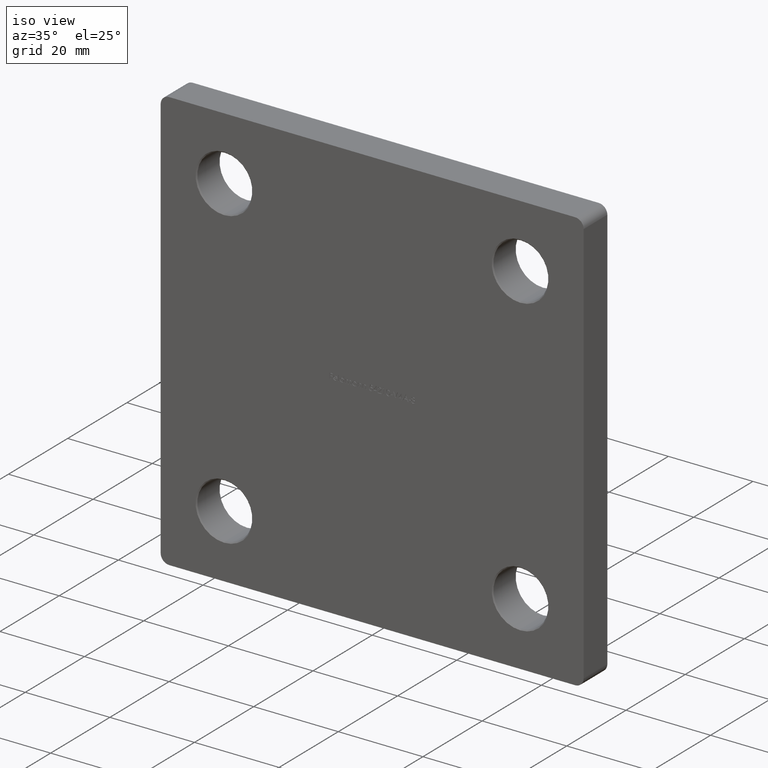
[diagram: clean part render]
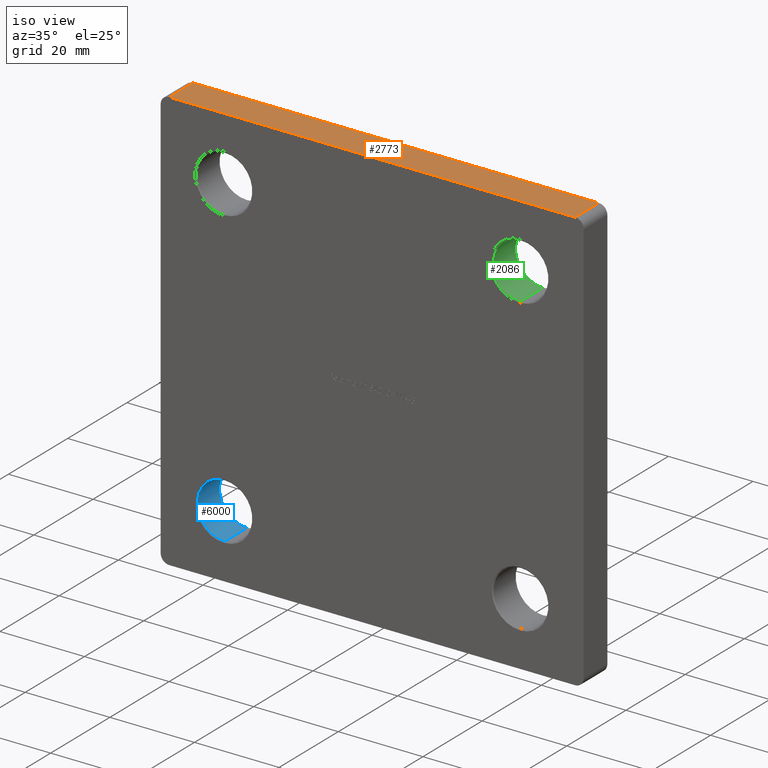
[diagram: same view with three faces highlighted in distinct colors, each labeled with its STEP entity id]
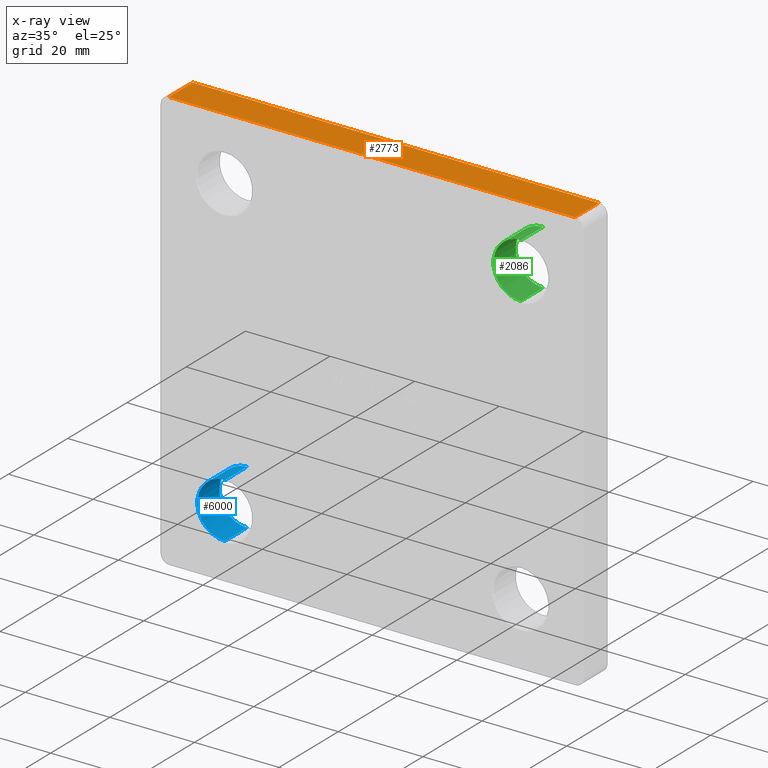
[diagram: x-ray of the same camera — body ghosted, the three highlighted faces saturated]
A machine part, iso view with three faces highlighted in distinct colors.
The next image is the same camera in x-ray (body ghosted, the three faces saturated) — at least one of them is partly hidden behind the body in this view.
Their STEP definitions:

[orange] entity #2773 — the highlighted planar face has unit normal (0, 0, -1).
#790 = LINE ( 'NONE', #3370, #3651 ) ;
#844 = CARTESIAN_POINT ( 'NONE',  ( -49.99999999999998579, 8.000000000000000000, 50.00000000000000711 ) ) ;
#850 = ORIENTED_EDGE ( 'NONE', *, *, #7209, .T. ) ;
#1106 = LINE ( 'NONE', #3955, #8121 ) ;
#1478 = VERTEX_POINT ( 'NONE', #7026 ) ;
#1943 = VERTEX_POINT ( 'NONE', #8567 ) ;
#2391 = DIRECTION ( 'NONE',  ( -0.000000000000000000, 1.000000000000000000, -0.000000000000000000 ) ) ;
#2415 = CARTESIAN_POINT ( 'NONE',  ( -49.99999999999998579, 0.000000000000000000, 50.00000000000000711 ) ) ;
#2437 = CARTESIAN_POINT ( 'NONE',  ( -47.99999999999998579, 0.000000000000000000, 50.00000000000000711 ) ) ;
#2773 = ADVANCED_FACE ( 'NONE', ( #10277 ), #12014, .F. ) ;
#3370 = CARTESIAN_POINT ( 'NONE',  ( -47.99999999999998579, 8.000000000000000000, 50.00000000000000711 ) ) ;
#3457 = CARTESIAN_POINT ( 'NONE',  ( 48.00000000000001421, 8.000000000000000000, 50.00000000000000711 ) ) ;
#3651 = VECTOR ( 'NONE', #6688, 1000.000000000000000 ) ;
#3955 = CARTESIAN_POINT ( 'NONE',  ( -49.99999999999998579, 8.000000000000000000, 50.00000000000000711 ) ) ;
#4327 = LINE ( 'NONE', #2415, #12168 ) ;
#4654 = EDGE_CURVE ( 'NONE', #7170, #7237, #4327, .T. ) ;
#6688 = DIRECTION ( 'NONE',  ( 0.000000000000000000, -1.000000000000000000, 0.000000000000000000 ) ) ;
#7026 = CARTESIAN_POINT ( 'NONE',  ( -47.99999999999998579, 8.000000000000000000, 50.00000000000000711 ) ) ;
#7170 = VERTEX_POINT ( 'NONE', #2437 ) ;
#7209 = EDGE_CURVE ( 'NONE', #7237, #1943, #9402, .T. ) ;
#7237 = VERTEX_POINT ( 'NONE', #10756 ) ;
#7265 = EDGE_CURVE ( 'NONE', #1478, #7170, #790, .T. ) ;
#8121 = VECTOR ( 'NONE', #11223, 1000.000000000000000 ) ;
#8567 = CARTESIAN_POINT ( 'NONE',  ( 48.00000000000001421, 8.000000000000000000, 50.00000000000000711 ) ) ;
#8892 = EDGE_CURVE ( 'NONE', #1478, #1943, #1106, .T. ) ;
#9255 = AXIS2_PLACEMENT_3D ( 'NONE', #844, #12928, #13018 ) ;
#9402 = LINE ( 'NONE', #3457, #13069 ) ;
#9414 = ORIENTED_EDGE ( 'NONE', *, *, #4654, .T. ) ;
#10277 = FACE_OUTER_BOUND ( 'NONE', #10872, .T. ) ;
#10756 = CARTESIAN_POINT ( 'NONE',  ( 48.00000000000001421, 0.000000000000000000, 50.00000000000000711 ) ) ;
#10872 = EDGE_LOOP ( 'NONE', ( #12317, #12805, #9414, #850 ) ) ;
#11223 = DIRECTION ( 'NONE',  ( 1.000000000000000000, 0.000000000000000000, 0.000000000000000000 ) ) ;
#11693 = DIRECTION ( 'NONE',  ( 1.000000000000000000, 0.000000000000000000, 0.000000000000000000 ) ) ;
#12014 = PLANE ( 'NONE',  #9255 ) ;
#12168 = VECTOR ( 'NONE', #11693, 1000.000000000000000 ) ;
#12317 = ORIENTED_EDGE ( 'NONE', *, *, #8892, .F. ) ;
#12805 = ORIENTED_EDGE ( 'NONE', *, *, #7265, .T. ) ;
#12928 = DIRECTION ( 'NONE',  ( 0.000000000000000000, 0.000000000000000000, -1.000000000000000000 ) ) ;
#13018 = DIRECTION ( 'NONE',  ( -1.000000000000000000, 0.000000000000000000, -0.000000000000000000 ) ) ;
#13069 = VECTOR ( 'NONE', #2391, 1000.000000000000000 ) ;

[blue] entity #6000 — the highlighted cylindrical surface (edge-blend (fillet) strip) has radius 6.5 mm, axis along (-0, 1, -0).
#110 = DIRECTION ( 'NONE',  ( 0.000000000000000000, 0.000000000000000000, 1.000000000000000000 ) ) ;
#254 = DIRECTION ( 'NONE',  ( -0.000000000000000000, 1.000000000000000000, -0.000000000000000000 ) ) ;
#999 = LINE ( 'NONE', #10252, #3241 ) ;
#1174 = DIRECTION ( 'NONE',  ( -0.000000000000000000, -1.000000000000000000, -0.000000000000000000 ) ) ;
#1749 = EDGE_CURVE ( 'NONE', #6270, #12766, #2628, .T. ) ;
#2109 = CARTESIAN_POINT ( 'NONE',  ( -35.00000000000000000, 7.749999999999996447, -28.50000000000000355 ) ) ;
#2488 = DIRECTION ( 'NONE',  ( 0.000000000000000000, 0.000000000000000000, 1.000000000000000000 ) ) ;
#2628 = CIRCLE ( 'NONE', #10873, 6.499999999999999112 ) ;
#2792 = CARTESIAN_POINT ( 'NONE',  ( -35.00000000000000000, 7.749999999999996447, -41.50000000000000000 ) ) ;
#3141 = VERTEX_POINT ( 'NONE', #2792 ) ;
#3241 = VECTOR ( 'NONE', #12271, 1000.000000000000000 ) ;
#3513 = CYLINDRICAL_SURFACE ( 'NONE', #9103, 6.499999999999999112 ) ;
#3681 = EDGE_CURVE ( 'NONE', #12766, #3141, #999, .T. ) ;
#4138 = CARTESIAN_POINT ( 'NONE',  ( -35.00000000000000000, 0.2500000000000132672, -41.50000000000000000 ) ) ;
#4282 = DIRECTION ( 'NONE',  ( 0.000000000000000000, 0.000000000000000000, 1.000000000000000000 ) ) ;
#5200 = LINE ( 'NONE', #5581, #11927 ) ;
#5252 = ORIENTED_EDGE ( 'NONE', *, *, #7527, .T. ) ;
#5581 = CARTESIAN_POINT ( 'NONE',  ( -35.00000000000000000, 0.000000000000000000, -28.50000000000000355 ) ) ;
#5935 = AXIS2_PLACEMENT_3D ( 'NONE', #6191, #12198, #110 ) ;
#6000 = ADVANCED_FACE ( 'NONE', ( #9895 ), #3513, .F. ) ;
#6109 = ORIENTED_EDGE ( 'NONE', *, *, #11134, .F. ) ;
#6191 = CARTESIAN_POINT ( 'NONE',  ( -35.00000000000000000, 7.749999999999996447, -35.00000000000000000 ) ) ;
#6270 = VERTEX_POINT ( 'NONE', #9706 ) ;
#7282 = ORIENTED_EDGE ( 'NONE', *, *, #1749, .T. ) ;
#7506 = ORIENTED_EDGE ( 'NONE', *, *, #3681, .T. ) ;
#7527 = EDGE_CURVE ( 'NONE', #3141, #9730, #7952, .T. ) ;
#7635 = DIRECTION ( 'NONE',  ( -0.000000000000000000, 1.000000000000000000, -0.000000000000000000 ) ) ;
#7952 = CIRCLE ( 'NONE', #5935, 6.499999999999999112 ) ;
#8595 = CARTESIAN_POINT ( 'NONE',  ( -35.00000000000000000, 0.000000000000000000, -35.00000000000000000 ) ) ;
#9103 = AXIS2_PLACEMENT_3D ( 'NONE', #8595, #254, #2488 ) ;
#9706 = CARTESIAN_POINT ( 'NONE',  ( -35.00000000000000000, 0.2500000000000132672, -28.50000000000000355 ) ) ;
#9730 = VERTEX_POINT ( 'NONE', #2109 ) ;
#9895 = FACE_OUTER_BOUND ( 'NONE', #10427, .T. ) ;
#10252 = CARTESIAN_POINT ( 'NONE',  ( -35.00000000000000000, 0.000000000000000000, -41.50000000000000000 ) ) ;
#10391 = CARTESIAN_POINT ( 'NONE',  ( -35.00000000000000000, 0.2500000000000132672, -35.00000000000000000 ) ) ;
#10427 = EDGE_LOOP ( 'NONE', ( #7282, #7506, #5252, #6109 ) ) ;
#10873 = AXIS2_PLACEMENT_3D ( 'NONE', #10391, #1174, #4282 ) ;
#11134 = EDGE_CURVE ( 'NONE', #6270, #9730, #5200, .T. ) ;
#11927 = VECTOR ( 'NONE', #7635, 1000.000000000000000 ) ;
#12198 = DIRECTION ( 'NONE',  ( 0.000000000000000000, 1.000000000000000000, 0.000000000000000000 ) ) ;
#12271 = DIRECTION ( 'NONE',  ( -0.000000000000000000, 1.000000000000000000, -0.000000000000000000 ) ) ;
#12766 = VERTEX_POINT ( 'NONE', #4138 ) ;

[green] entity #2086 — the highlighted cylindrical surface (edge-blend (fillet) strip) has radius 6.5 mm, axis along (-0, 1, -0).
#69 = DIRECTION ( 'NONE',  ( 0.000000000000000000, 0.000000000000000000, 1.000000000000000000 ) ) ;
#464 = ORIENTED_EDGE ( 'NONE', *, *, #10365, .F. ) ;
#694 = EDGE_CURVE ( 'NONE', #3659, #1617, #6341, .T. ) ;
#1042 = DIRECTION ( 'NONE',  ( 0.000000000000000000, 1.000000000000000000, 0.000000000000000000 ) ) ;
#1369 = LINE ( 'NONE', #6903, #9499 ) ;
#1617 = VERTEX_POINT ( 'NONE', #10849 ) ;
#1837 = DIRECTION ( 'NONE',  ( -0.000000000000000000, 1.000000000000000000, -0.000000000000000000 ) ) ;
#1962 = ORIENTED_EDGE ( 'NONE', *, *, #12345, .T. ) ;
#2086 = ADVANCED_FACE ( 'NONE', ( #7239 ), #8363, .F. ) ;
#2468 = ORIENTED_EDGE ( 'NONE', *, *, #3201, .T. ) ;
#3201 = EDGE_CURVE ( 'NONE', #9024, #9247, #8512, .T. ) ;
#3659 = VERTEX_POINT ( 'NONE', #6087 ) ;
#5158 = ORIENTED_EDGE ( 'NONE', *, *, #694, .T. ) ;
#5181 = CARTESIAN_POINT ( 'NONE',  ( 35.00000000000000000, 7.749999999999996447, 35.00000000000000000 ) ) ;
#6087 = CARTESIAN_POINT ( 'NONE',  ( 35.00000000000000000, 0.2500000000000132672, 41.50000000000000000 ) ) ;
#6245 = AXIS2_PLACEMENT_3D ( 'NONE', #12008, #1837, #9220 ) ;
#6341 = CIRCLE ( 'NONE', #8216, 6.499999999999999112 ) ;
#6448 = EDGE_LOOP ( 'NONE', ( #5158, #1962, #2468, #464 ) ) ;
#6634 = VECTOR ( 'NONE', #8677, 1000.000000000000000 ) ;
#6903 = CARTESIAN_POINT ( 'NONE',  ( 35.00000000000000000, 0.000000000000000000, 28.50000000000000355 ) ) ;
#7239 = FACE_OUTER_BOUND ( 'NONE', #6448, .T. ) ;
#8179 = CARTESIAN_POINT ( 'NONE',  ( 35.00000000000000000, 0.2500000000000132672, 35.00000000000000000 ) ) ;
#8216 = AXIS2_PLACEMENT_3D ( 'NONE', #8179, #11346, #8263 ) ;
#8263 = DIRECTION ( 'NONE',  ( 0.000000000000000000, 0.000000000000000000, 1.000000000000000000 ) ) ;
#8363 = CYLINDRICAL_SURFACE ( 'NONE', #6245, 6.499999999999999112 ) ;
#8512 = CIRCLE ( 'NONE', #12591, 6.499999999999999112 ) ;
#8677 = DIRECTION ( 'NONE',  ( -0.000000000000000000, 1.000000000000000000, -0.000000000000000000 ) ) ;
#8764 = CARTESIAN_POINT ( 'NONE',  ( 35.00000000000000000, 0.000000000000000000, 41.50000000000000000 ) ) ;
#9024 = VERTEX_POINT ( 'NONE', #12302 ) ;
#9220 = DIRECTION ( 'NONE',  ( 0.000000000000000000, 0.000000000000000000, 1.000000000000000000 ) ) ;
#9247 = VERTEX_POINT ( 'NONE', #10231 ) ;
#9499 = VECTOR ( 'NONE', #11026, 1000.000000000000000 ) ;
#10231 = CARTESIAN_POINT ( 'NONE',  ( 35.00000000000000000, 7.749999999999996447, 41.50000000000000000 ) ) ;
#10365 = EDGE_CURVE ( 'NONE', #3659, #9247, #10472, .T. ) ;
#10472 = LINE ( 'NONE', #8764, #6634 ) ;
#10849 = CARTESIAN_POINT ( 'NONE',  ( 35.00000000000000000, 0.2500000000000132672, 28.50000000000000355 ) ) ;
#11026 = DIRECTION ( 'NONE',  ( -0.000000000000000000, 1.000000000000000000, -0.000000000000000000 ) ) ;
#11346 = DIRECTION ( 'NONE',  ( -0.000000000000000000, -1.000000000000000000, -0.000000000000000000 ) ) ;
#12008 = CARTESIAN_POINT ( 'NONE',  ( 35.00000000000000000, 0.000000000000000000, 35.00000000000000000 ) ) ;
#12302 = CARTESIAN_POINT ( 'NONE',  ( 35.00000000000000000, 7.749999999999996447, 28.50000000000000355 ) ) ;
#12345 = EDGE_CURVE ( 'NONE', #1617, #9024, #1369, .T. ) ;
#12591 = AXIS2_PLACEMENT_3D ( 'NONE', #5181, #1042, #69 ) ;